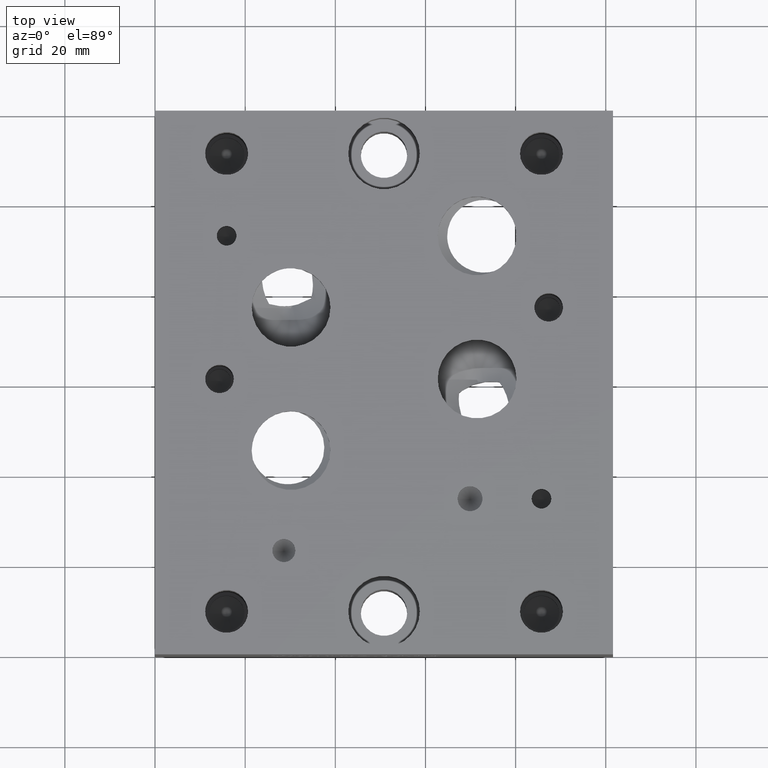
[diagram: clean part render]
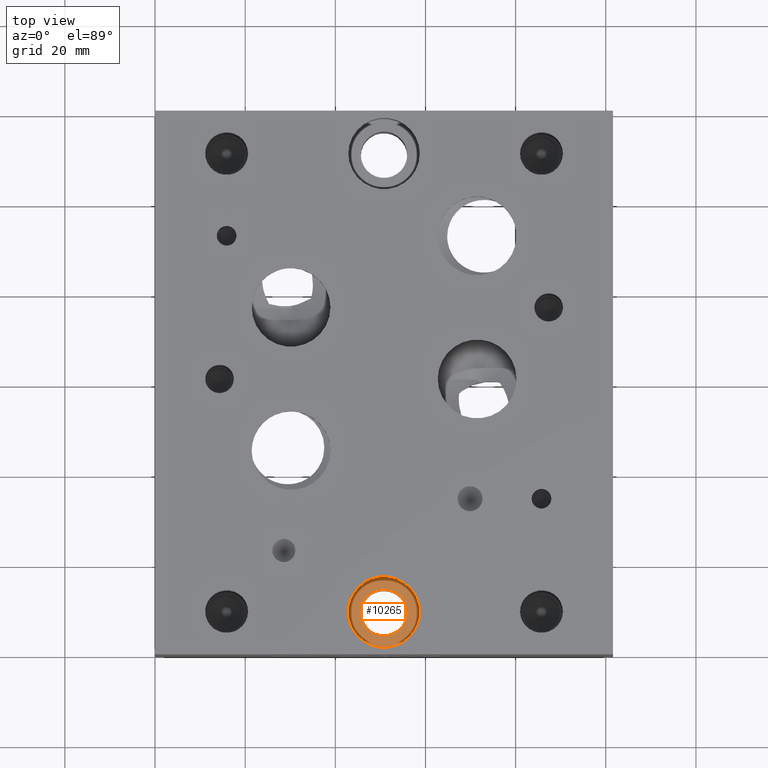
[diagram: same view with one face highlighted and labeled with its STEP entity id]
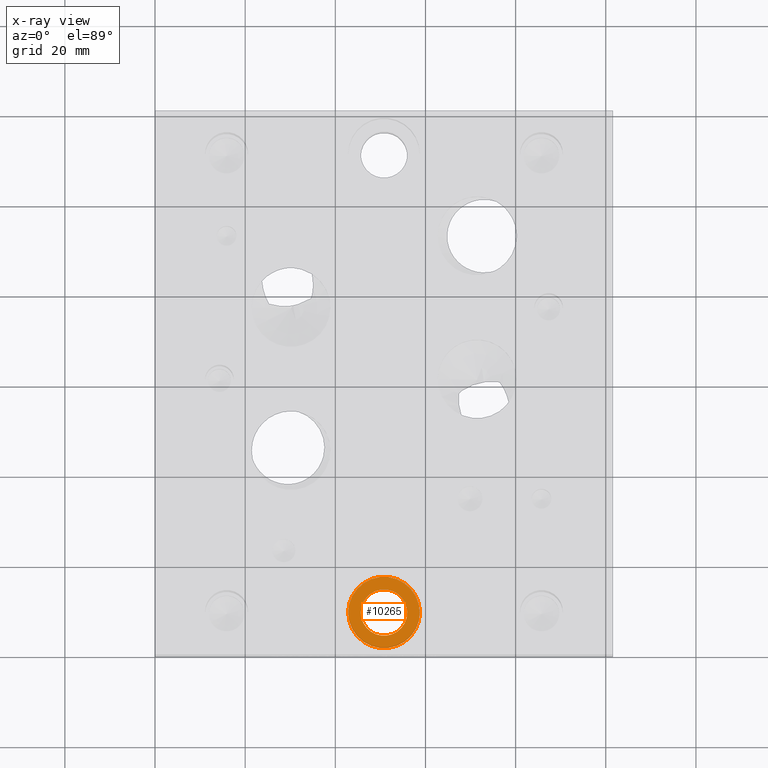
[diagram: x-ray of the same camera — body ghosted, the highlighted face saturated]
A machine part, top view. The second image highlights one B-rep face of the part: STEP entity #10265.
The next image is the same camera in x-ray: the body ghosted, the highlighted face saturated — about 0% of this face is hidden behind the body in this view.
In plain terms, the highlighted planar face has unit normal (0, 0, 1).
Its self-contained STEP definition (entity closure, byte-faithful):
#403=CIRCLE('',#10868,7.9375);
#404=CIRCLE('',#10869,7.9375);
#405=CIRCLE('',#10870,5.1562);
#721=FACE_BOUND('',#1836,.T.);
#1251=FACE_OUTER_BOUND('',#1835,.T.);
#1835=EDGE_LOOP('',(#8965,#8966));
#1836=EDGE_LOOP('',(#8967));
#4776=VERTEX_POINT('',#17616);
#4777=VERTEX_POINT('',#17617);
#4778=VERTEX_POINT('',#17620);
#6187=EDGE_CURVE('',#4776,#4777,#403,.T.);
#6188=EDGE_CURVE('',#4777,#4776,#404,.T.);
#6189=EDGE_CURVE('',#4778,#4778,#405,.T.);
#8965=ORIENTED_EDGE('',*,*,#6187,.T.);
#8966=ORIENTED_EDGE('',*,*,#6188,.T.);
#8967=ORIENTED_EDGE('',*,*,#6189,.F.);
#9350=PLANE('',#10867);
#10265=ADVANCED_FACE('',(#1251,#721),#9350,.T.);
#10867=AXIS2_PLACEMENT_3D('',#17615,#13015,#13016);
#10868=AXIS2_PLACEMENT_3D('',#17618,#13017,#13018);
#10869=AXIS2_PLACEMENT_3D('',#17619,#13019,#13020);
#10870=AXIS2_PLACEMENT_3D('',#17621,#13021,#13022);
#13015=DIRECTION('center_axis',(0.,0.,1.));
#13016=DIRECTION('ref_axis',(1.,0.,0.));
#13017=DIRECTION('center_axis',(0.,0.,1.));
#13018=DIRECTION('ref_axis',(1.,0.,0.));
#13019=DIRECTION('center_axis',(0.,0.,1.));
#13020=DIRECTION('ref_axis',(1.,0.,0.));
#13021=DIRECTION('center_axis',(0.,0.,1.));
#13022=DIRECTION('ref_axis',(1.,0.,0.));
#17615=CARTESIAN_POINT('Origin',(50.8,9.525,23.8252));
#17616=CARTESIAN_POINT('',(58.7375,9.525,23.8252));
#17617=CARTESIAN_POINT('',(42.8625,9.525,23.8252));
#17618=CARTESIAN_POINT('Origin',(50.8,9.525,23.8252));
#17619=CARTESIAN_POINT('Origin',(50.8,9.525,23.8252));
#17620=CARTESIAN_POINT('',(45.6438,9.525,23.8252));
#17621=CARTESIAN_POINT('Origin',(50.8,9.525,23.8252));